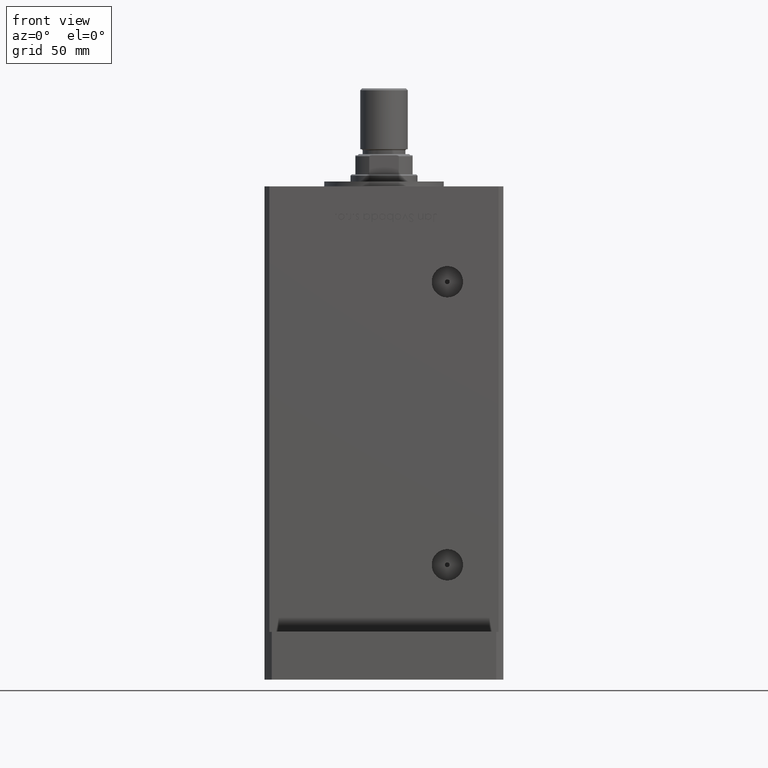
[diagram: clean part render]
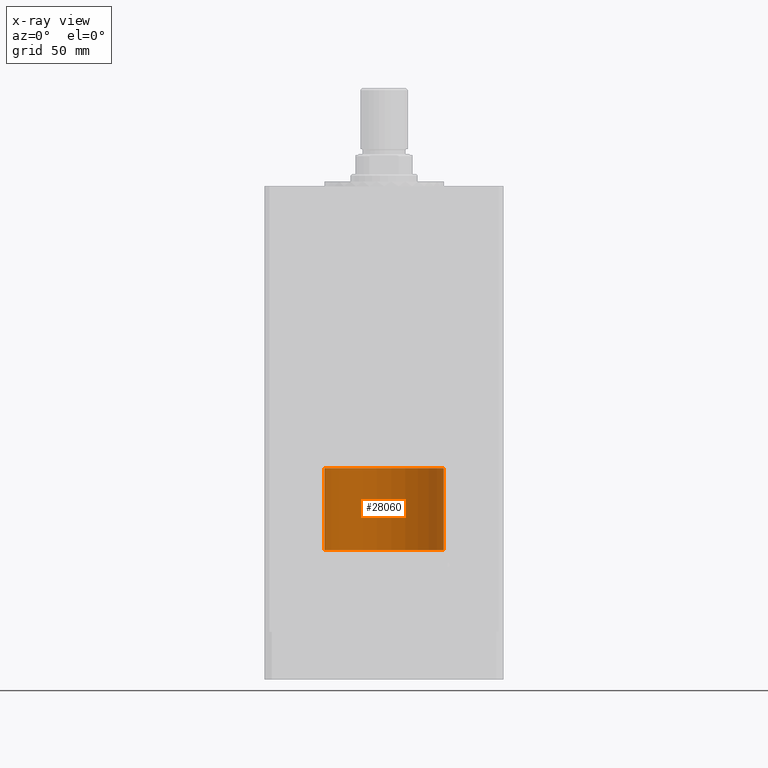
[diagram: x-ray — body ghosted, one internal face saturated and labeled with its STEP entity id]
A machine part, front view, then the same camera in x-ray: the body is ghosted and one INTERNAL B-rep face — a face not visible from any outside direction — is saturated and labeled: STEP entity #28060.
In plain terms, the highlighted cylindrical surface (partial cylindrical patch) has radius 25 mm, axis along (-0, -0, -1).
Its self-contained STEP definition (entity closure, byte-faithful):
#1983 = ORIENTED_EDGE ( 'NONE', *, *, #16392, .T. ) ;
#2694 = VERTEX_POINT ( 'NONE', #35733 ) ;
#4323 = LINE ( 'NONE', #34407, #17964 ) ;
#6195 = CARTESIAN_POINT ( 'NONE',  ( -25.00000000000000000, 0.000000000000000000, 0.000000000000000000 ) ) ;
#6985 = CARTESIAN_POINT ( 'NONE',  ( 0.000000000000000000, 0.000000000000000000, 34.25000000000000000 ) ) ;
#10232 = AXIS2_PLACEMENT_3D ( 'NONE', #43664, #30798, #39019 ) ;
#11968 = CIRCLE ( 'NONE', #10232, 25.00000000000000000 ) ;
#16392 = EDGE_CURVE ( 'NONE', #43930, #2694, #23200, .T. ) ;
#16466 = DIRECTION ( 'NONE',  ( 0.000000000000000000, 0.000000000000000000, 1.000000000000000000 ) ) ;
#17641 = ORIENTED_EDGE ( 'NONE', *, *, #26985, .T. ) ;
#17964 = VECTOR ( 'NONE', #42099, 1000.000000000000000 ) ;
#18042 = AXIS2_PLACEMENT_3D ( 'NONE', #24408, #16466, #37513 ) ;
#19232 = ORIENTED_EDGE ( 'NONE', *, *, #30293, .F. ) ;
#19502 = VECTOR ( 'NONE', #22382, 1000.000000000000000 ) ;
#22382 = DIRECTION ( 'NONE',  ( -0.000000000000000000, -0.000000000000000000, -1.000000000000000000 ) ) ;
#23200 = LINE ( 'NONE', #43983, #19502 ) ;
#23288 = CIRCLE ( 'NONE', #18042, 25.00000000000000000 ) ;
#24408 = CARTESIAN_POINT ( 'NONE',  ( 0.000000000000000000, 0.000000000000000000, 34.25000000000000000 ) ) ;
#26099 = CARTESIAN_POINT ( 'NONE',  ( -25.00000000000000000, 0.000000000000000000, 34.25000000000000000 ) ) ;
#26985 = EDGE_CURVE ( 'NONE', #2694, #43921, #11968, .T. ) ;
#28060 = ADVANCED_FACE ( 'NONE', ( #48871 ), #44494, .T. ) ;
#30293 = EDGE_CURVE ( 'NONE', #43930, #48258, #23288, .T. ) ;
#30798 = DIRECTION ( 'NONE',  ( 0.000000000000000000, 0.000000000000000000, 1.000000000000000000 ) ) ;
#31930 = CARTESIAN_POINT ( 'NONE',  ( 25.00000000000000000, 3.061616997868383043E-15, 34.25000000000000000 ) ) ;
#34407 = CARTESIAN_POINT ( 'NONE',  ( -25.00000000000000000, 0.000000000000000000, 34.25000000000000000 ) ) ;
#35733 = CARTESIAN_POINT ( 'NONE',  ( 25.00000000000000000, 3.061616997868383043E-15, 0.000000000000000000 ) ) ;
#37513 = DIRECTION ( 'NONE',  ( 1.000000000000000000, 0.000000000000000000, 0.000000000000000000 ) ) ;
#39019 = DIRECTION ( 'NONE',  ( 1.000000000000000000, 0.000000000000000000, 0.000000000000000000 ) ) ;
#42099 = DIRECTION ( 'NONE',  ( -0.000000000000000000, -0.000000000000000000, -1.000000000000000000 ) ) ;
#43664 = CARTESIAN_POINT ( 'NONE',  ( 0.000000000000000000, 0.000000000000000000, 0.000000000000000000 ) ) ;
#43921 = VERTEX_POINT ( 'NONE', #6195 ) ;
#43930 = VERTEX_POINT ( 'NONE', #31930 ) ;
#43983 = CARTESIAN_POINT ( 'NONE',  ( 25.00000000000000000, 3.061616997868383043E-15, 34.25000000000000000 ) ) ;
#44494 = CYLINDRICAL_SURFACE ( 'NONE', #46964, 25.00000000000000000 ) ;
#44726 = EDGE_CURVE ( 'NONE', #48258, #43921, #4323, .T. ) ;
#46964 = AXIS2_PLACEMENT_3D ( 'NONE', #6985, #52986, #52708 ) ;
#47244 = ORIENTED_EDGE ( 'NONE', *, *, #44726, .F. ) ;
#48258 = VERTEX_POINT ( 'NONE', #26099 ) ;
#48871 = FACE_OUTER_BOUND ( 'NONE', #50828, .T. ) ;
#50828 = EDGE_LOOP ( 'NONE', ( #19232, #1983, #17641, #47244 ) ) ;
#52708 = DIRECTION ( 'NONE',  ( -1.000000000000000000, 0.000000000000000000, 0.000000000000000000 ) ) ;
#52986 = DIRECTION ( 'NONE',  ( -0.000000000000000000, -0.000000000000000000, -1.000000000000000000 ) ) ;